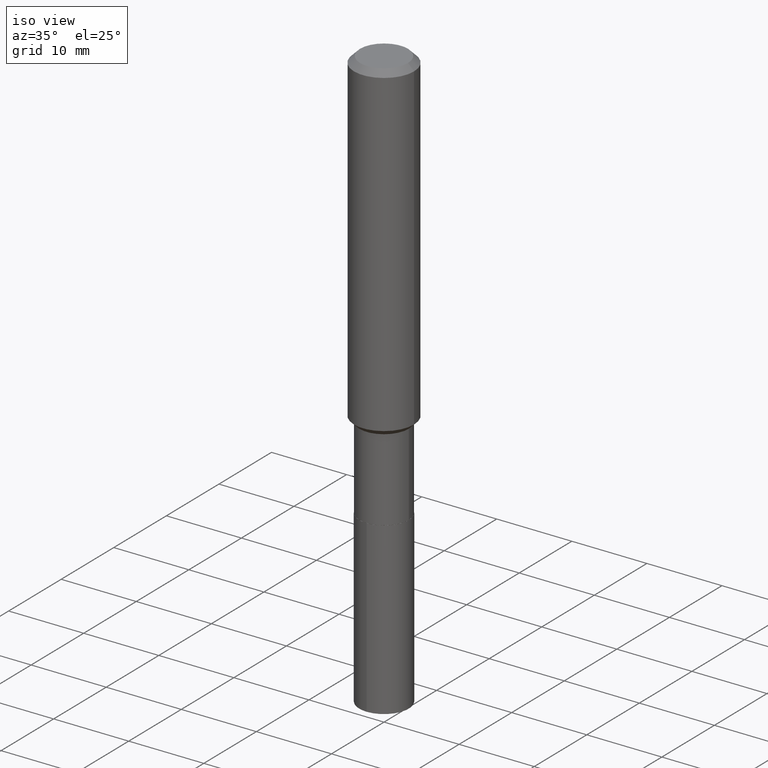
[diagram: clean part render]
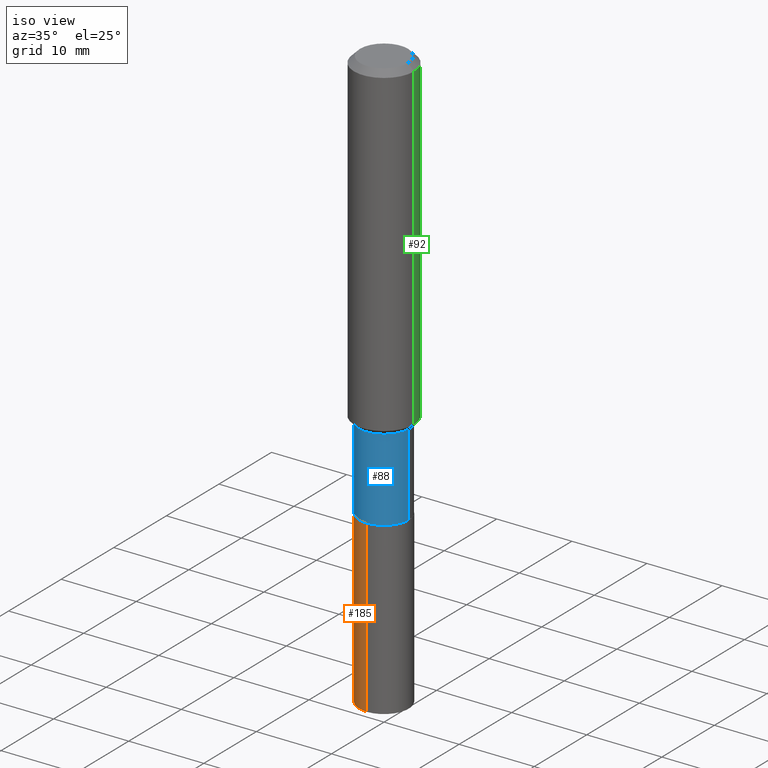
[diagram: same view with three faces highlighted in distinct colors, each labeled with its STEP entity id]
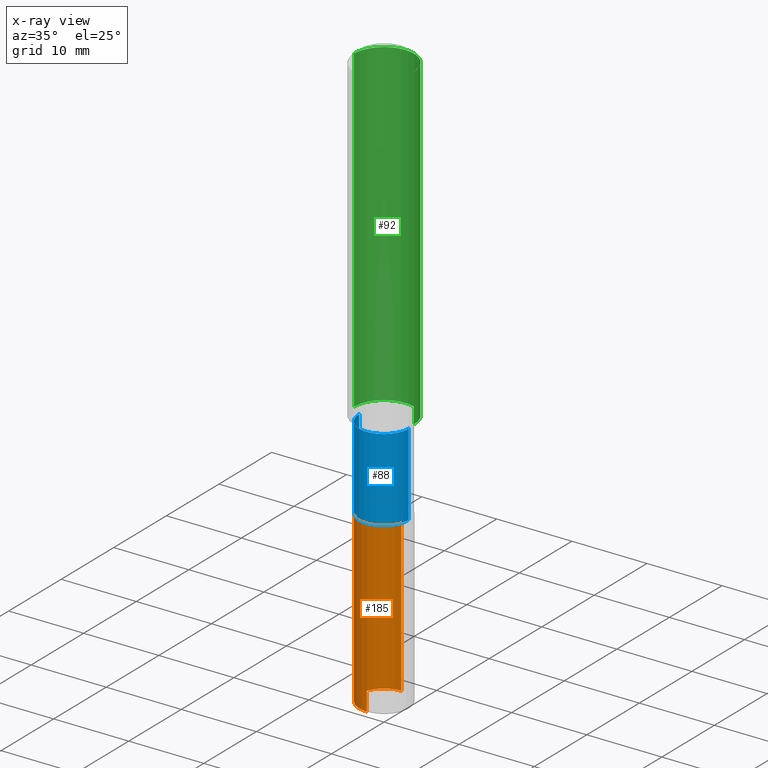
[diagram: x-ray of the same camera — body ghosted, the three highlighted faces saturated]
A machine part, iso view with three faces highlighted in distinct colors.
The next image is the same camera in x-ray (body ghosted, the three faces saturated) — at least one of them is partly hidden behind the body in this view.
Their STEP definitions:

[orange] entity #185 — the highlighted cylindrical surface (edge-blend (fillet) strip) has radius 3.2995 mm, axis along (-0, 0, 1).
#1 = EDGE_CURVE ( 'NONE', #54, #28, #373, .T. ) ;
#11 = AXIS2_PLACEMENT_3D ( 'NONE', #333, #149, #438 ) ;
#16 = DIRECTION ( 'NONE',  ( -2.445321399674212677E-29, 3.491692433356646244E-15, 1.000000000000000000 ) ) ;
#18 = VECTOR ( 'NONE', #334, 39.37007874015748143 ) ;
#19 = EDGE_CURVE ( 'NONE', #68, #51, #183, .T. ) ;
#28 = VERTEX_POINT ( 'NONE', #327 ) ;
#31 = FACE_OUTER_BOUND ( 'NONE', #135, .T. ) ;
#35 = ORIENTED_EDGE ( 'NONE', *, *, #19, .F. ) ;
#51 = VERTEX_POINT ( 'NONE', #263 ) ;
#54 = VERTEX_POINT ( 'NONE', #139 ) ;
#55 = EDGE_CURVE ( 'NONE', #68, #54, #439, .T. ) ;
#66 = DIRECTION ( 'NONE',  ( -6.982962677686266711E-15, -1.000000000000000000, 4.206078512185163024E-15 ) ) ;
#68 = VERTEX_POINT ( 'NONE', #256 ) ;
#135 = EDGE_LOOP ( 'NONE', ( #35, #302, #332, #160 ) ) ;
#139 = CARTESIAN_POINT ( 'NONE',  ( -9.070868518313710503E-16, -0.1299000000000106736, -3.059031029217619047 ) ) ;
#149 = DIRECTION ( 'NONE',  ( -2.445321399674212677E-29, 3.491692433356646244E-15, 1.000000000000000000 ) ) ;
#156 = VECTOR ( 'NONE', #445, 39.37007874015748143 ) ;
#160 = ORIENTED_EDGE ( 'NONE', *, *, #480, .F. ) ;
#180 = CARTESIAN_POINT ( 'NONE',  ( 9.229950137524229077E-16, 0.1298999999999924382, -2.165300000000000669 ) ) ;
#183 = LINE ( 'NONE', #180, #18 ) ;
#185 = ADVANCED_FACE ( 'NONE', ( #31 ), #486, .T. ) ;
#187 = CARTESIAN_POINT ( 'NONE',  ( -9.070868518313931384E-16, -0.1299000000000075650, -2.165299999999999336 ) ) ;
#256 = CARTESIAN_POINT ( 'NONE',  ( 9.229950137524447986E-16, 0.1298999999999893296, -3.059031029217620379 ) ) ;
#263 = CARTESIAN_POINT ( 'NONE',  ( 9.229950137524449958E-16, 0.1298999999999924382, -2.165300000000000669 ) ) ;
#299 = CARTESIAN_POINT ( 'NONE',  ( 7.480633217331380672E-29, -1.068073841517227497E-14, -3.059031029217619935 ) ) ;
#302 = ORIENTED_EDGE ( 'NONE', *, *, #55, .T. ) ;
#327 = CARTESIAN_POINT ( 'NONE',  ( -9.070868518313931384E-16, -0.1299000000000075650, -2.165299999999999336 ) ) ;
#332 = ORIENTED_EDGE ( 'NONE', *, *, #1, .T. ) ;
#333 = CARTESIAN_POINT ( 'NONE',  ( 5.295173606032675561E-29, -7.560104542997063911E-15, -2.165299999999999780 ) ) ;
#334 = DIRECTION ( 'NONE',  ( -2.445321399674212397E-29, 3.491692433356646639E-15, 1.000000000000000000 ) ) ;
#348 = CIRCLE ( 'NONE', #442, 0.1298999999999999877 ) ;
#358 = AXIS2_PLACEMENT_3D ( 'NONE', #299, #452, #66 ) ;
#373 = LINE ( 'NONE', #187, #156 ) ;
#406 = CARTESIAN_POINT ( 'NONE',  ( 5.295173606032675561E-29, -7.560104542997063911E-15, -2.165299999999999780 ) ) ;
#430 = DIRECTION ( 'NONE',  ( -6.982962677686266711E-15, -1.000000000000000000, 4.206078512185163024E-15 ) ) ;
#438 = DIRECTION ( 'NONE',  ( -6.982962677686266711E-15, -1.000000000000000000, 4.206078512185163024E-15 ) ) ;
#439 = CIRCLE ( 'NONE', #358, 0.1298999999999999877 ) ;
#442 = AXIS2_PLACEMENT_3D ( 'NONE', #406, #16, #430 ) ;
#445 = DIRECTION ( 'NONE',  ( -2.445321399674212397E-29, 3.491692433356646639E-15, 1.000000000000000000 ) ) ;
#452 = DIRECTION ( 'NONE',  ( -2.445321399674212677E-29, 3.491692433356646244E-15, 1.000000000000000000 ) ) ;
#480 = EDGE_CURVE ( 'NONE', #51, #28, #348, .T. ) ;
#486 = CYLINDRICAL_SURFACE ( 'NONE', #11, 0.1298999999999999877 ) ;

[blue] entity #88 — the highlighted cylindrical surface (edge-blend (fillet) strip) has radius 3.2995 mm, axis along (-0, 0, 1).
#27 = VECTOR ( 'NONE', #203, 39.37007874015748143 ) ;
#45 = CARTESIAN_POINT ( 'NONE',  ( 0.1298999999999999877, -8.465445654159088005E-15, -2.164800000000000058 ) ) ;
#46 = LINE ( 'NONE', #305, #141 ) ;
#77 = CIRCLE ( 'NONE', #351, 0.1298999999999999322 ) ;
#82 = EDGE_LOOP ( 'NONE', ( #359, #317, #310, #239 ) ) ;
#83 = CARTESIAN_POINT ( 'NONE',  ( 0.1298999999999999599, -9.070868518314457948E-16, 6.334153631758918028E-30 ) ) ;
#88 = ADVANCED_FACE ( 'NONE', ( #450 ), #447, .T. ) ;
#91 = CIRCLE ( 'NONE', #440, 0.1298999999999999877 ) ;
#106 = CARTESIAN_POINT ( 'NONE',  ( -0.1298999999999999877, -5.880854671251267548E-15, -2.164800000000000058 ) ) ;
#111 = EDGE_CURVE ( 'NONE', #167, #278, #77, .T. ) ;
#113 = EDGE_CURVE ( 'NONE', #368, #167, #46, .T. ) ;
#117 = DIRECTION ( 'NONE',  ( -2.445468806185136877E-29, 3.491481338843145188E-15, 1.000000000000000000 ) ) ;
#141 = VECTOR ( 'NONE', #117, 39.37007874015748143 ) ;
#153 = DIRECTION ( 'NONE',  ( -2.445468806185136597E-29, 3.491481338843145583E-15, 1.000000000000000000 ) ) ;
#167 = VERTEX_POINT ( 'NONE', #262 ) ;
#191 = CARTESIAN_POINT ( 'NONE',  ( 0.000000000000000000, 0.000000000000000000, 0.000000000000000000 ) ) ;
#195 = DIRECTION ( 'NONE',  ( 1.000000000000000000, -6.982962677686263555E-15, 0.000000000000000000 ) ) ;
#203 = DIRECTION ( 'NONE',  ( -2.445468806185136877E-29, 3.491481338843145188E-15, 1.000000000000000000 ) ) ;
#215 = DIRECTION ( 'NONE',  ( -2.445468806185136597E-29, 3.491481338843145583E-15, 1.000000000000000000 ) ) ;
#220 = CARTESIAN_POINT ( 'NONE',  ( 4.237019253596368185E-29, -6.049340567679635558E-15, -1.732600000000000362 ) ) ;
#227 = DIRECTION ( 'NONE',  ( 1.000000000000000000, -6.982962677686268288E-15, 0.000000000000000000 ) ) ;
#239 = ORIENTED_EDGE ( 'NONE', *, *, #111, .F. ) ;
#262 = CARTESIAN_POINT ( 'NONE',  ( -0.1298999999999999322, -5.880854671251268337E-15, -1.732600000000000362 ) ) ;
#270 = EDGE_CURVE ( 'NONE', #368, #463, #91, .T. ) ;
#274 = AXIS2_PLACEMENT_3D ( 'NONE', #191, #215, #362 ) ;
#278 = VERTEX_POINT ( 'NONE', #343 ) ;
#304 = LINE ( 'NONE', #83, #27 ) ;
#305 = CARTESIAN_POINT ( 'NONE',  ( -0.1298999999999999599, 9.229950137523698568E-16, -6.389696682241120408E-30 ) ) ;
#310 = ORIENTED_EDGE ( 'NONE', *, *, #355, .T. ) ;
#317 = ORIENTED_EDGE ( 'NONE', *, *, #270, .T. ) ;
#343 = CARTESIAN_POINT ( 'NONE',  ( 0.1298999999999999322, -6.956427419511080367E-15, -1.732600000000000362 ) ) ;
#351 = AXIS2_PLACEMENT_3D ( 'NONE', #220, #153, #195 ) ;
#355 = EDGE_CURVE ( 'NONE', #463, #278, #304, .T. ) ;
#359 = ORIENTED_EDGE ( 'NONE', *, *, #113, .F. ) ;
#362 = DIRECTION ( 'NONE',  ( 1.000000000000000000, -6.982962677686266711E-15, 4.876176775795935232E-29 ) ) ;
#368 = VERTEX_POINT ( 'NONE', #106 ) ;
#417 = DIRECTION ( 'NONE',  ( -2.445468806185136597E-29, 3.491481338843145583E-15, 1.000000000000000000 ) ) ;
#440 = AXIS2_PLACEMENT_3D ( 'NONE', #454, #417, #227 ) ;
#447 = CYLINDRICAL_SURFACE ( 'NONE', #274, 0.1298999999999999599 ) ;
#450 = FACE_OUTER_BOUND ( 'NONE', #82, .T. ) ;
#454 = CARTESIAN_POINT ( 'NONE',  ( 5.293950871629583880E-29, -7.558358802327641618E-15, -2.164800000000000058 ) ) ;
#463 = VERTEX_POINT ( 'NONE', #45 ) ;

[green] entity #92 — the highlighted cylindrical surface (partial cylindrical patch) has radius 4.0005 mm, axis along (-0, 0, 1).
#7 = DIRECTION ( 'NONE',  ( -2.445468806185136597E-29, 3.491481338843145583E-15, 1.000000000000000000 ) ) ;
#10 = AXIS2_PLACEMENT_3D ( 'NONE', #399, #145, #218 ) ;
#21 = ORIENTED_EDGE ( 'NONE', *, *, #314, .F. ) ;
#23 = DIRECTION ( 'NONE',  ( 1.000000000000000000, -6.982962677686267499E-15, 4.876176775795936353E-29 ) ) ;
#40 = EDGE_CURVE ( 'NONE', #138, #363, #482, .T. ) ;
#70 = AXIS2_PLACEMENT_3D ( 'NONE', #119, #7, #462 ) ;
#72 = CARTESIAN_POINT ( 'NONE',  ( -0.1575000000000000011, -1.912373863628402067E-15, -0.03150000000000019451 ) ) ;
#75 = VERTEX_POINT ( 'NONE', #296 ) ;
#92 = ADVANCED_FACE ( 'NONE', ( #101 ), #254, .T. ) ;
#101 = FACE_OUTER_BOUND ( 'NONE', #469, .T. ) ;
#102 = EDGE_CURVE ( 'NONE', #394, #138, #339, .T. ) ;
#103 = CARTESIAN_POINT ( 'NONE',  ( -0.1575000000000000844, 1.119104808822158392E-15, -7.747322767151481189E-30 ) ) ;
#110 = CARTESIAN_POINT ( 'NONE',  ( 0.000000000000000000, 0.000000000000000000, 0.000000000000000000 ) ) ;
#119 = CARTESIAN_POINT ( 'NONE',  ( 7.703226739483228723E-31, -1.099816621735597661E-16, -0.03150000000000019451 ) ) ;
#126 = AXIS2_PLACEMENT_3D ( 'NONE', #110, #378, #23 ) ;
#138 = VERTEX_POINT ( 'NONE', #298 ) ;
#145 = DIRECTION ( 'NONE',  ( -2.445468806185136597E-29, 3.491481338843145583E-15, 1.000000000000000000 ) ) ;
#155 = CARTESIAN_POINT ( 'NONE',  ( 0.1575000000000001954, -7.052792304463151308E-15, -1.705000000000000071 ) ) ;
#163 = VECTOR ( 'NONE', #225, 39.37007874015748143 ) ;
#196 = ORIENTED_EDGE ( 'NONE', *, *, #102, .T. ) ;
#216 = ORIENTED_EDGE ( 'NONE', *, *, #40, .T. ) ;
#218 = DIRECTION ( 'NONE',  ( 1.000000000000000000, -6.982962677686265922E-15, 0.000000000000000000 ) ) ;
#225 = DIRECTION ( 'NONE',  ( -2.445468806185136877E-29, 3.491481338843145188E-15, 1.000000000000000000 ) ) ;
#238 = VECTOR ( 'NONE', #286, 39.37007874015748143 ) ;
#246 = EDGE_CURVE ( 'NONE', #394, #75, #324, .T. ) ;
#254 = CYLINDRICAL_SURFACE ( 'NONE', #126, 0.1575000000000000844 ) ;
#286 = DIRECTION ( 'NONE',  ( -2.445468806185136877E-29, 3.491481338843145188E-15, 1.000000000000000000 ) ) ;
#296 = CARTESIAN_POINT ( 'NONE',  ( 0.1575000000000000011, -1.209798283909146741E-15, -0.03150000000000019451 ) ) ;
#298 = CARTESIAN_POINT ( 'NONE',  ( -0.1575000000000001954, -4.833870873905404647E-15, -1.705000000000000071 ) ) ;
#314 = EDGE_CURVE ( 'NONE', #75, #363, #354, .T. ) ;
#324 = LINE ( 'NONE', #475, #238 ) ;
#339 = CIRCLE ( 'NONE', #10, 0.1575000000000001954 ) ;
#354 = CIRCLE ( 'NONE', #70, 0.1575000000000000011 ) ;
#363 = VERTEX_POINT ( 'NONE', #72 ) ;
#378 = DIRECTION ( 'NONE',  ( -2.445468806185136597E-29, 3.491481338843145583E-15, 1.000000000000000000 ) ) ;
#394 = VERTEX_POINT ( 'NONE', #155 ) ;
#399 = CARTESIAN_POINT ( 'NONE',  ( 4.169524314545657651E-29, -5.952975682727563039E-15, -1.705000000000000071 ) ) ;
#404 = ORIENTED_EDGE ( 'NONE', *, *, #246, .F. ) ;
#462 = DIRECTION ( 'NONE',  ( 1.000000000000000000, -6.982962677686265922E-15, 0.000000000000000000 ) ) ;
#469 = EDGE_LOOP ( 'NONE', ( #196, #216, #21, #404 ) ) ;
#475 = CARTESIAN_POINT ( 'NONE',  ( 0.1575000000000000844, -1.099816621735587677E-15, 7.679978421878603638E-30 ) ) ;
#482 = LINE ( 'NONE', #103, #163 ) ;